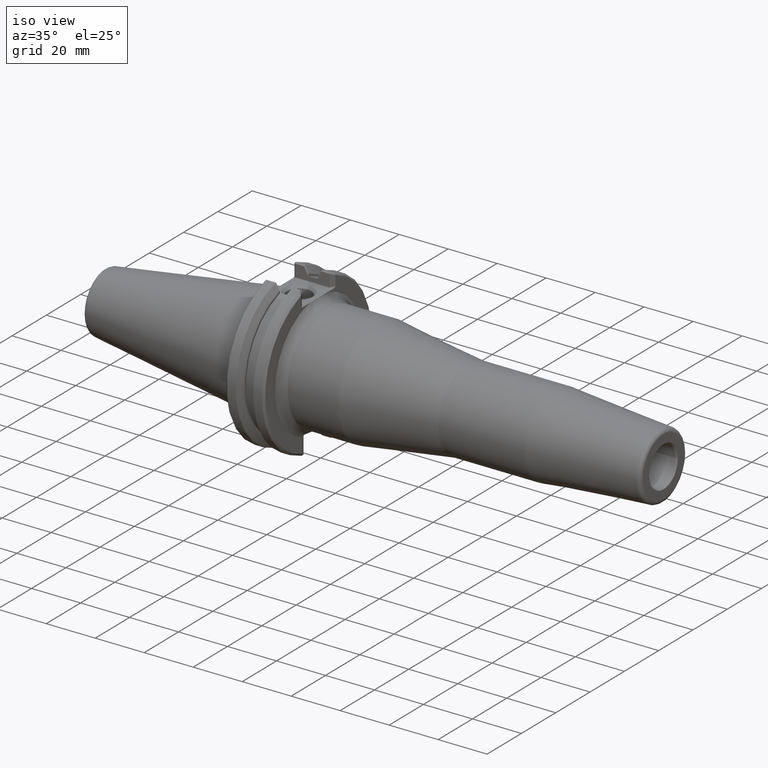
[diagram: clean part render]
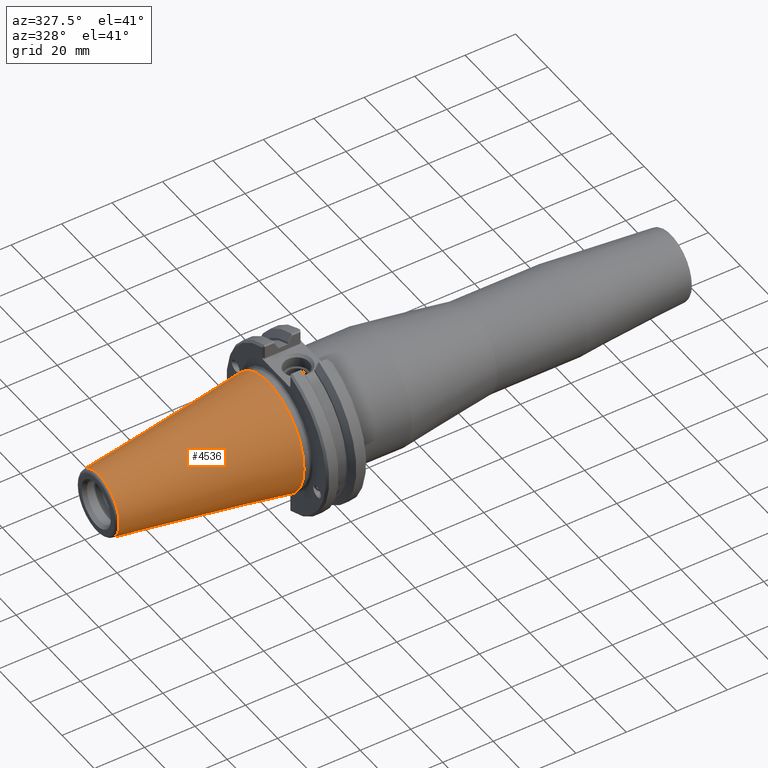
[diagram: tour spotlight — one face highlighted and labeled with its STEP entity id]
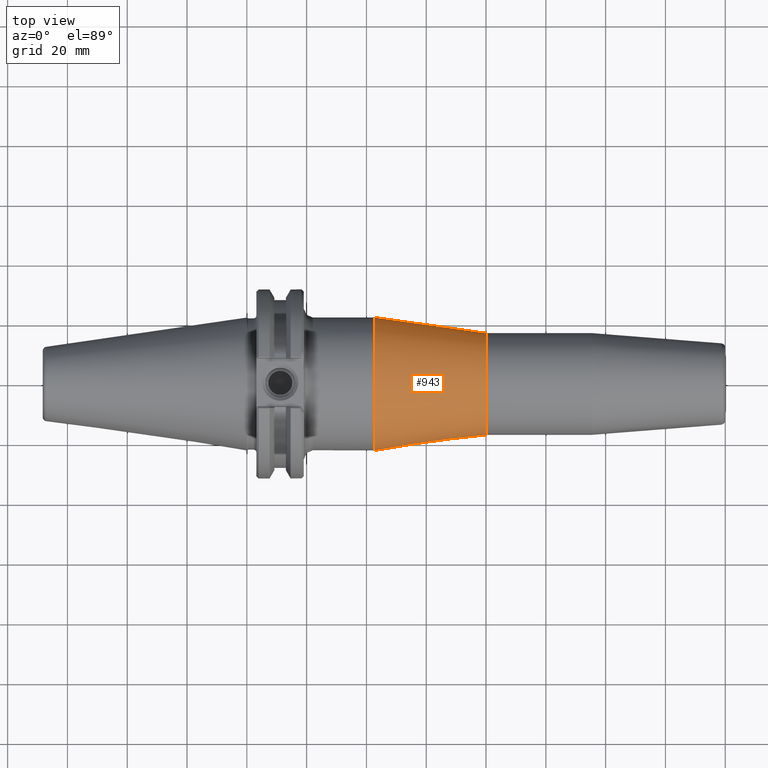
[diagram: tour spotlight — one face highlighted and labeled with its STEP entity id]
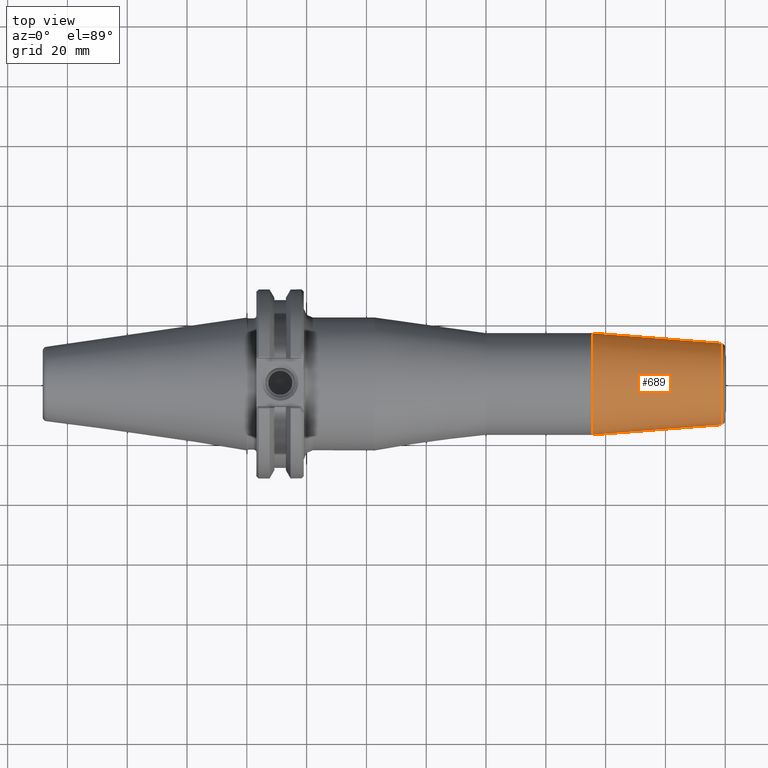
[diagram: tour spotlight — one face highlighted and labeled with its STEP entity id]
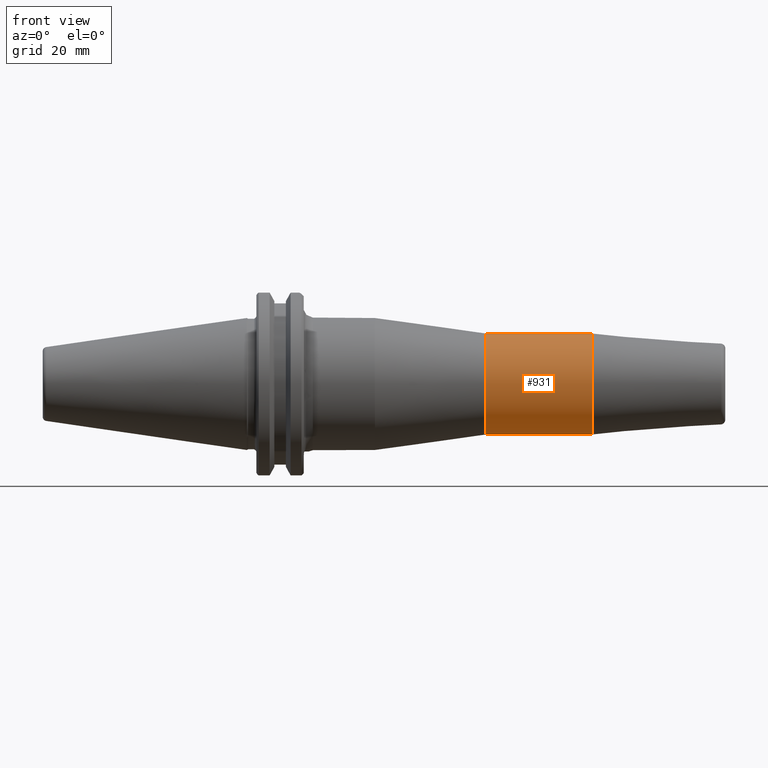
[diagram: tour spotlight — one face highlighted and labeled with its STEP entity id]
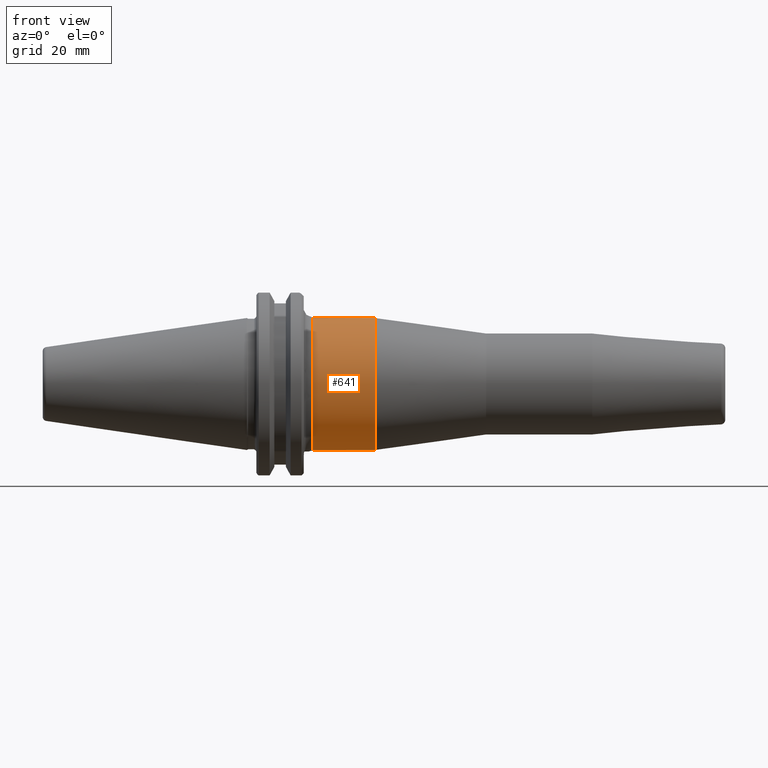
[diagram: tour spotlight — one face highlighted and labeled with its STEP entity id]
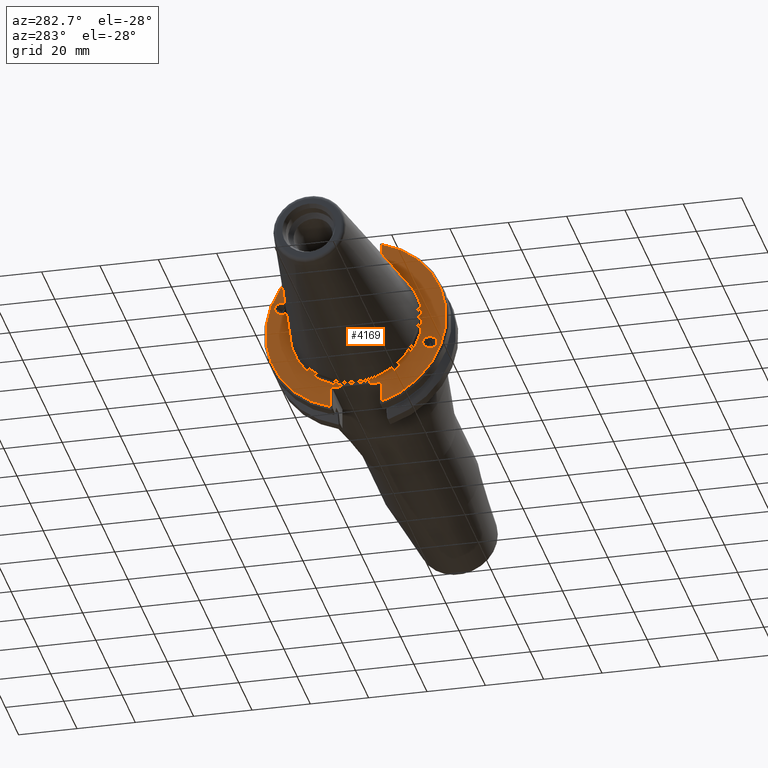
[diagram: tour spotlight — one face highlighted and labeled with its STEP entity id]
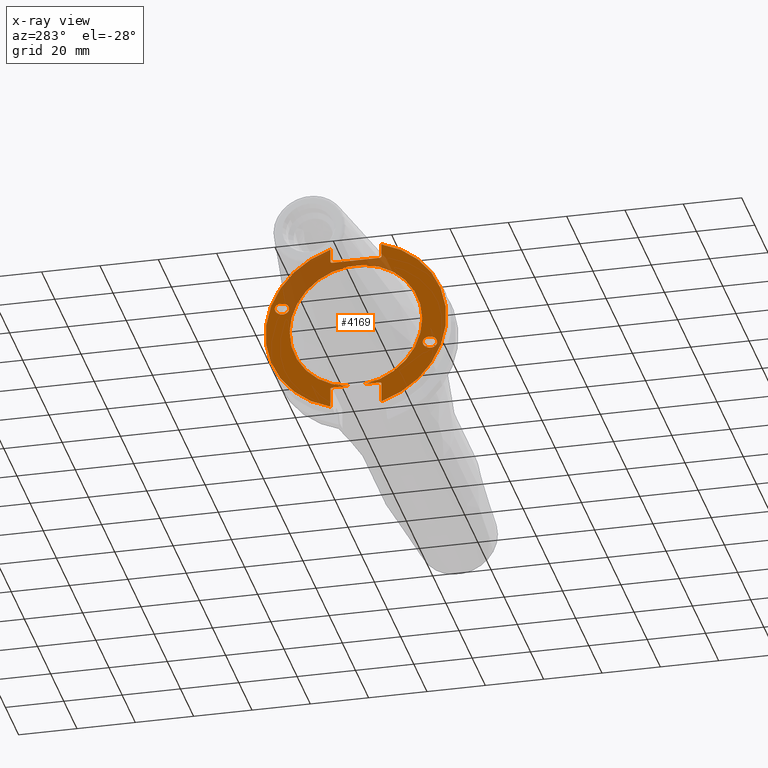
[diagram: x-ray of the same camera — body ghosted, this tour face saturated]
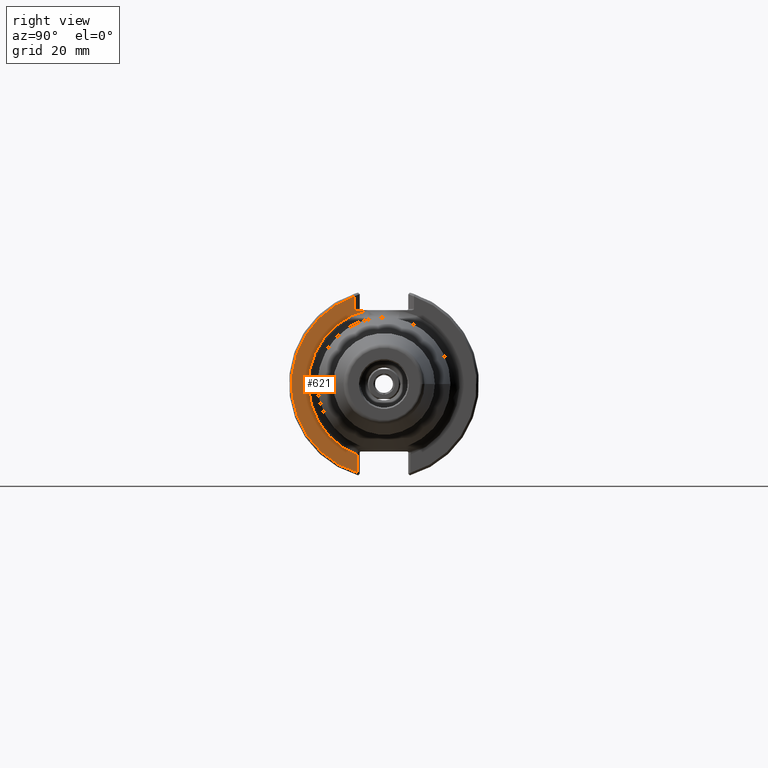
[diagram: tour spotlight — one face highlighted and labeled with its STEP entity id]
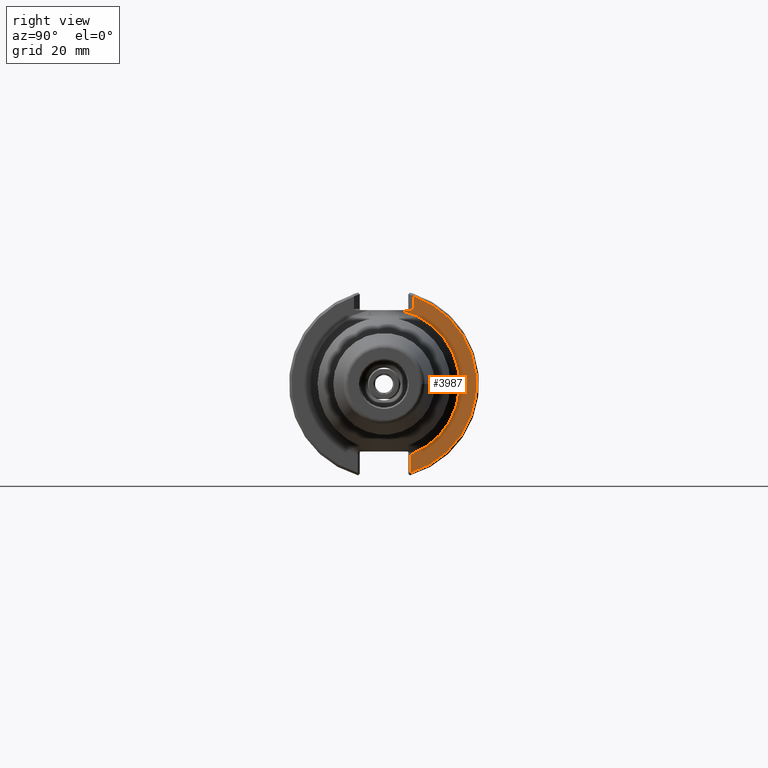
[diagram: tour spotlight — one face highlighted and labeled with its STEP entity id]
A machine part: a face-by-face anatomy tour. The part has 153 B-rep faces; the first image is the clean iso view, then the 8 largest visible faces are spotlighted one at a time (largest first), each with its STEP entity span.

Face 1 — auxiliary view, entity #4536. In plain terms, the highlighted conical surface has half-angle 8.297 deg.
Definition (entity closure, byte-faithful):
#4303=CARTESIAN_POINT('',(0.0,22.224999999999998,0.0));
#4304=VERTEX_POINT('',#4303);
#4305=CARTESIAN_POINT('',(0.0,0.0,0.0));
#4306=DIRECTION('',(1.0,1.624514E-013,0.0));
#4307=DIRECTION('',(-1.624514E-013,1.0,0.0));
#4308=AXIS2_PLACEMENT_3D('',#4305,#4306,#4307);
#4309=CIRCLE('',#4308,22.224999999999998);
#4310=EDGE_CURVE('',#4304,#4304,#4309,.T.);
#4501=CARTESIAN_POINT('',(-67.088827900437934,12.441385956103170,-3.047160E-015));
#4502=VERTEX_POINT('',#4501);
#4503=CARTESIAN_POINT('',(-67.088827900437892,2.886580E-013,-1.523580E-015));
#4504=DIRECTION('',(-1.0,0.0,0.0));
#4505=DIRECTION('',(0.0,-1.0,0.0));
#4506=AXIS2_PLACEMENT_3D('',#4503,#4504,#4505);
#4507=CIRCLE('',#4506,12.441385956102881);
#4508=EDGE_CURVE('',#4502,#4502,#4507,.T.);
#4525=CARTESIAN_POINT('',(-34.131250000000001,0.0,0.0));
#4526=DIRECTION('',(1.0,0.0,0.0));
#4527=DIRECTION('',(-1.624514E-013,1.0,0.0));
#4528=AXIS2_PLACEMENT_3D('',#4525,#4526,#4527);
#4529=CONICAL_SURFACE('',#4528,17.247614237182344,8.296999999999994);
#4530=ORIENTED_EDGE('',*,*,#4310,.F.);
#4531=EDGE_LOOP('',(#4530));
#4532=FACE_OUTER_BOUND('',#4531,.T.);
#4533=ORIENTED_EDGE('',*,*,#4508,.F.);
#4534=EDGE_LOOP('',(#4533));
#4535=FACE_BOUND('',#4534,.T.);
#4536=ADVANCED_FACE('',(#4532,#4535),#4529,.T.);

Face 2 — top view, entity #943. In plain terms, the highlighted conical surface has half-angle 8 deg.
Definition (entity closure, byte-faithful):
#627=CARTESIAN_POINT('',(42.832193200542505,22.224999999999998,0.0));
#628=VERTEX_POINT('',#627);
#629=CARTESIAN_POINT('',(42.832193200542505,0.0,0.0));
#630=DIRECTION('',(1.0,0.0,0.0));
#631=DIRECTION('',(0.0,1.0,0.0));
#632=AXIS2_PLACEMENT_3D('',#629,#630,#631);
#633=CIRCLE('',#632,22.224999999999998);
#634=EDGE_CURVE('',#628,#628,#633,.T.);
#920=CARTESIAN_POINT('',(80.009999999999977,17.000000000000007,0.0));
#921=VERTEX_POINT('',#920);
#922=CARTESIAN_POINT('',(80.009999999999977,0.0,0.0));
#923=DIRECTION('',(1.0,0.0,0.0));
#924=DIRECTION('',(0.0,1.0,0.0));
#925=AXIS2_PLACEMENT_3D('',#922,#923,#924);
#926=CIRCLE('',#925,17.000000000000007);
#927=EDGE_CURVE('',#921,#921,#926,.T.);
#932=CARTESIAN_POINT('',(61.421096600271241,0.0,0.0));
#933=DIRECTION('',(-1.0,0.0,0.0));
#934=DIRECTION('',(0.0,1.0,0.0));
#935=AXIS2_PLACEMENT_3D('',#932,#933,#934);
#936=CONICAL_SURFACE('',#935,19.612500000000001,7.999999999999992);
#937=ORIENTED_EDGE('',*,*,#927,.F.);
#938=EDGE_LOOP('',(#937));
#939=FACE_OUTER_BOUND('',#938,.T.);
#940=ORIENTED_EDGE('',*,*,#634,.T.);
#941=EDGE_LOOP('',(#940));
#942=FACE_BOUND('',#941,.T.);
#943=ADVANCED_FACE('',(#939,#942),#936,.T.);

Face 3 — top view, entity #689. In plain terms, the highlighted conical surface has half-angle 4.5 deg.
Definition (entity closure, byte-faithful):
#647=CARTESIAN_POINT('',(158.605571661889200,13.610530907322184,2.465190E-031));
#648=VERTEX_POINT('',#647);
#649=CARTESIAN_POINT('',(158.605571661889200,0.0,-1.666754E-015));
#650=DIRECTION('',(1.0,0.0,0.0));
#651=DIRECTION('',(0.0,-1.0,0.0));
#652=AXIS2_PLACEMENT_3D('',#649,#650,#651);
#653=CIRCLE('',#652,13.610530907322184);
#654=EDGE_CURVE('',#648,#648,#653,.T.);
#670=CARTESIAN_POINT('',(137.774141711694140,0.0,0.0));
#671=DIRECTION('',(-1.0,0.0,0.0));
#672=DIRECTION('',(0.0,1.0,0.0));
#673=AXIS2_PLACEMENT_3D('',#670,#671,#672);
#674=CONICAL_SURFACE('',#673,15.250000000000007,4.499999999999990);
#675=CARTESIAN_POINT('',(115.538283423388320,17.000000000000014,0.0));
#676=VERTEX_POINT('',#675);
#677=CARTESIAN_POINT('',(115.538283423388320,0.0,0.0));
#678=DIRECTION('',(1.0,0.0,0.0));
#679=DIRECTION('',(0.0,1.0,0.0));
#680=AXIS2_PLACEMENT_3D('',#677,#678,#679);
#681=CIRCLE('',#680,17.000000000000014);
#682=EDGE_CURVE('',#676,#676,#681,.T.);
#683=ORIENTED_EDGE('',*,*,#682,.T.);
#684=EDGE_LOOP('',(#683));
#685=FACE_OUTER_BOUND('',#684,.T.);
#686=ORIENTED_EDGE('',*,*,#654,.F.);
#687=EDGE_LOOP('',(#686));
#688=FACE_BOUND('',#687,.T.);
#689=ADVANCED_FACE('',(#685,#688),#674,.T.);

Face 4 — front view, entity #931. In plain terms, the highlighted cylindrical surface (bore or boss wall) has radius 17 mm, axis along (1, 0, 0).
Definition (entity closure, byte-faithful):
#675=CARTESIAN_POINT('',(115.538283423388320,17.000000000000014,0.0));
#676=VERTEX_POINT('',#675);
#677=CARTESIAN_POINT('',(115.538283423388320,0.0,0.0));
#678=DIRECTION('',(1.0,0.0,0.0));
#679=DIRECTION('',(0.0,1.0,0.0));
#680=AXIS2_PLACEMENT_3D('',#677,#678,#679);
#681=CIRCLE('',#680,17.000000000000014);
#682=EDGE_CURVE('',#676,#676,#681,.T.);
#912=CARTESIAN_POINT('',(75.231641711694152,0.0,0.0));
#913=DIRECTION('',(1.0,0.0,0.0));
#914=DIRECTION('',(0.0,1.0,0.0));
#915=AXIS2_PLACEMENT_3D('',#912,#913,#914);
#916=CYLINDRICAL_SURFACE('',#915,17.000000000000007);
#917=ORIENTED_EDGE('',*,*,#682,.F.);
#918=EDGE_LOOP('',(#917));
#919=FACE_OUTER_BOUND('',#918,.T.);
#920=CARTESIAN_POINT('',(80.009999999999977,17.000000000000007,0.0));
#921=VERTEX_POINT('',#920);
#922=CARTESIAN_POINT('',(80.009999999999977,0.0,0.0));
#923=DIRECTION('',(1.0,0.0,0.0));
#924=DIRECTION('',(0.0,1.0,0.0));
#925=AXIS2_PLACEMENT_3D('',#922,#923,#924);
#926=CIRCLE('',#925,17.000000000000007);
#927=EDGE_CURVE('',#921,#921,#926,.T.);
#928=ORIENTED_EDGE('',*,*,#927,.T.);
#929=EDGE_LOOP('',(#928));
#930=FACE_BOUND('',#929,.T.);
#931=ADVANCED_FACE('',(#919,#930),#916,.T.);

Face 5 — front view, entity #641. In plain terms, the highlighted cylindrical surface (bore or boss wall) has radius 22.225 mm, axis along (1, 0, 0).
Definition (entity closure, byte-faithful):
#561=CARTESIAN_POINT('',(22.098000000000006,22.225000000000001,-5.443375E-015));
#562=VERTEX_POINT('',#561);
#563=CARTESIAN_POINT('',(22.098000000000006,0.0,0.0));
#564=DIRECTION('',(-1.0,0.0,0.0));
#565=DIRECTION('',(0.0,-1.0,0.0));
#566=AXIS2_PLACEMENT_3D('',#563,#564,#565);
#567=CIRCLE('',#566,22.225000000000001);
#568=EDGE_CURVE('',#562,#562,#567,.T.);
#622=CARTESIAN_POINT('',(27.050999999999998,0.0,0.0));
#623=DIRECTION('',(1.0,0.0,0.0));
#624=DIRECTION('',(-1.624514E-013,1.0,0.0));
#625=AXIS2_PLACEMENT_3D('',#622,#623,#624);
#626=CYLINDRICAL_SURFACE('',#625,22.225000000000001);
#627=CARTESIAN_POINT('',(42.832193200542505,22.224999999999998,0.0));
#628=VERTEX_POINT('',#627);
#629=CARTESIAN_POINT('',(42.832193200542505,0.0,0.0));
#630=DIRECTION('',(1.0,0.0,0.0));
#631=DIRECTION('',(0.0,1.0,0.0));
#632=AXIS2_PLACEMENT_3D('',#629,#630,#631);
#633=CIRCLE('',#632,22.224999999999998);
#634=EDGE_CURVE('',#628,#628,#633,.T.);
#635=ORIENTED_EDGE('',*,*,#634,.F.);
#636=EDGE_LOOP('',(#635));
#637=FACE_OUTER_BOUND('',#636,.T.);
#638=ORIENTED_EDGE('',*,*,#568,.F.);
#639=EDGE_LOOP('',(#638));
#640=FACE_BOUND('',#639,.T.);
#641=ADVANCED_FACE('',(#637,#640),#626,.T.);

Face 6 — auxiliary view, entity #4169. An x-ray twin of the same camera follows (body ghosted, this face saturated) — the face is partly hidden behind the body. In plain terms, the highlighted planar face has unit normal (-1, 0, 0).
Definition (entity closure, byte-faithful):
#118=CARTESIAN_POINT('',(3.174999999999999,-23.020225310704397,-8.378676799197839));
#119=VERTEX_POINT('',#118);
#120=CARTESIAN_POINT('',(3.174999999999999,-25.371888699743685,-9.234612273821719));
#121=DIRECTION('',(1.000000000000000,0.0,0.0));
#122=DIRECTION('',(0.0,-0.939692620785909,-0.342020143325669));
#123=AXIS2_PLACEMENT_3D('',#120,#121,#122);
#124=ELLIPSE('',#123,2.502587906960984,2.050000000000002);
#125=EDGE_CURVE('',#119,#119,#124,.T.);
#342=CARTESIAN_POINT('',(3.174999999999999,23.020225310704411,8.378676799197804));
#343=VERTEX_POINT('',#342);
#344=CARTESIAN_POINT('',(3.174999999999999,25.371888699743685,9.234612273821718));
#345=DIRECTION('',(1.0,0.0,0.0));
#346=DIRECTION('',(0.0,0.939692620785904,0.342020143325682));
#347=AXIS2_PLACEMENT_3D('',#344,#345,#346);
#348=ELLIPSE('',#347,2.502587906960984,2.050000000000002);
#349=EDGE_CURVE('',#343,#343,#348,.T.);
#3237=CARTESIAN_POINT('',(3.174999999999999,8.763000000007136,25.196799999999996));
#3238=VERTEX_POINT('',#3237);
#3245=CARTESIAN_POINT('',(3.174999999999999,8.044579510321601,24.688799999999993));
#3246=VERTEX_POINT('',#3245);
#3247=CARTESIAN_POINT('',(3.174999999999999,8.044579510321603,25.196799999999996));
#3248=DIRECTION('',(-1.0,0.0,0.0));
#3249=DIRECTION('',(0.0,1.0,0.0));
#3250=AXIS2_PLACEMENT_3D('',#3247,#3248,#3249);
#3251=ELLIPSE('',#3250,0.718420489685532,0.508000000000000);
#3252=EDGE_CURVE('',#3238,#3246,#3251,.T.);
#3337=CARTESIAN_POINT('',(3.174999999999999,8.763000000007136,29.723155535707761));
#3338=VERTEX_POINT('',#3337);
#3345=CARTESIAN_POINT('',(3.174999999999999,8.763000000007136,29.723155535707761));
#3346=DIRECTION('',(0.0,0.0,-1.0));
#3347=VECTOR('',#3346,4.526355535707765);
#3348=LINE('',#3345,#3347);
#3349=EDGE_CURVE('',#3338,#3238,#3348,.T.);
#3431=CARTESIAN_POINT('',(3.174999999999999,-8.044579510307333,24.688799999999993));
#3432=VERTEX_POINT('',#3431);
#3439=CARTESIAN_POINT('',(3.174999999999999,-8.762999999992864,25.196799999999996));
#3440=VERTEX_POINT('',#3439);
#3441=CARTESIAN_POINT('',(3.174999999999999,-8.044579510307333,25.196799999999996));
#3442=DIRECTION('',(-1.0,0.0,0.0));
#3443=DIRECTION('',(0.0,-1.0,0.0));
#3444=AXIS2_PLACEMENT_3D('',#3441,#3442,#3443);
#3445=ELLIPSE('',#3444,0.718420489685531,0.508000000000000);
#3446=EDGE_CURVE('',#3432,#3440,#3445,.T.);
#3476=CARTESIAN_POINT('',(3.174999999999999,-8.762999999992864,29.723155535711964));
#3477=VERTEX_POINT('',#3476);
#3478=CARTESIAN_POINT('',(3.174999999999999,-8.762999999992864,25.196799999999996));
#3479=DIRECTION('',(0.0,0.0,1.0));
#3480=VECTOR('',#3479,4.526355535711968);
#3481=LINE('',#3478,#3480);
#3482=EDGE_CURVE('',#3440,#3477,#3481,.T.);
#3500=CARTESIAN_POINT('',(3.174999999999999,-8.762999999994042,-23.063200000000009));
#3501=VERTEX_POINT('',#3500);
#3502=CARTESIAN_POINT('',(3.174999999999999,-8.044579510308394,-22.555200000000006));
#3503=VERTEX_POINT('',#3502);
#3504=CARTESIAN_POINT('',(3.174999999999999,-8.044579510308394,-23.063200000000009));
#3505=DIRECTION('',(-1.0,0.0,0.0));
#3506=DIRECTION('',(0.0,-1.0,0.0));
#3507=AXIS2_PLACEMENT_3D('',#3504,#3505,#3506);
#3508=ELLIPSE('',#3507,0.718420489685649,0.508000000000000);
#3509=EDGE_CURVE('',#3501,#3503,#3508,.T.);
#3597=CARTESIAN_POINT('',(3.174999999999999,-8.762999999994042,-29.723155535711619));
#3598=VERTEX_POINT('',#3597);
#3605=CARTESIAN_POINT('',(3.174999999999999,-8.762999999994042,-29.723155535711619));
#3606=DIRECTION('',(0.0,0.0,1.0));
#3607=VECTOR('',#3606,6.659955535711610);
#3608=LINE('',#3605,#3607);
#3609=EDGE_CURVE('',#3598,#3501,#3608,.T.);
#3694=CARTESIAN_POINT('',(3.174999999999999,8.044579510320546,-22.555200000000006));
#3695=VERTEX_POINT('',#3694);
#3702=CARTESIAN_POINT('',(3.174999999999999,8.763000000005960,-23.063200000000009));
#3703=VERTEX_POINT('',#3702);
#3704=CARTESIAN_POINT('',(3.174999999999999,8.044579510320544,-23.063200000000009));
#3705=DIRECTION('',(-1.0,0.0,0.0));
#3706=DIRECTION('',(0.0,1.0,0.0));
#3707=AXIS2_PLACEMENT_3D('',#3704,#3705,#3706);
#3708=ELLIPSE('',#3707,0.718420489685416,0.508000000000000);
#3709=EDGE_CURVE('',#3695,#3703,#3708,.T.);
#3751=CARTESIAN_POINT('',(3.174999999999999,8.763000000005960,-29.723155535708106));
#3752=VERTEX_POINT('',#3751);
#3753=CARTESIAN_POINT('',(3.174999999999999,8.763000000005960,-23.063200000000009));
#3754=DIRECTION('',(0.0,0.0,-1.0));
#3755=VECTOR('',#3754,6.659955535708093);
#3756=LINE('',#3753,#3755);
#3757=EDGE_CURVE('',#3703,#3752,#3756,.T.);
#3845=CARTESIAN_POINT('',(3.174999999999999,8.044579510321601,24.688799999999993));
#3846=DIRECTION('',(0.0,-1.0,0.0));
#3847=VECTOR('',#3846,16.089159020628934);
#3848=LINE('',#3845,#3847);
#3849=EDGE_CURVE('',#3246,#3432,#3848,.T.);
#4067=CARTESIAN_POINT('',(3.174999999999999,-2.837647257852875,-22.555200000000006));
#4068=VERTEX_POINT('',#4067);
#4069=CARTESIAN_POINT('',(3.174999999999999,2.837647257852875,-22.555200000000006));
#4070=VERTEX_POINT('',#4069);
#4099=CARTESIAN_POINT('',(3.174999999999999,0.0,0.0));
#4100=DIRECTION('',(-1.0,0.0,0.0));
#4101=DIRECTION('',(0.0,-1.0,0.0));
#4102=AXIS2_PLACEMENT_3D('',#4099,#4100,#4101);
#4103=CIRCLE('',#4102,22.733000000000004);
#4104=EDGE_CURVE('',#4068,#4070,#4103,.T.);
#4120=CARTESIAN_POINT('',(3.174999999999999,26.987499999999997,0.0));
#4121=DIRECTION('',(-1.0,0.0,0.0));
#4122=DIRECTION('',(0.0,0.0,1.0));
#4123=AXIS2_PLACEMENT_3D('',#4120,#4121,#4122);
#4124=PLANE('',#4123);
#4125=ORIENTED_EDGE('',*,*,#4104,.F.);
#4126=CARTESIAN_POINT('',(3.174999999999999,-8.044579510308394,-22.555200000000006));
#4127=DIRECTION('',(0.0,1.0,0.0));
#4128=VECTOR('',#4127,5.206932252455520);
#4129=LINE('',#4126,#4128);
#4130=EDGE_CURVE('',#3503,#4068,#4129,.T.);
#4131=ORIENTED_EDGE('',*,*,#4130,.F.);
#4132=ORIENTED_EDGE('',*,*,#3509,.F.);
#4133=ORIENTED_EDGE('',*,*,#3609,.F.);
#4134=CARTESIAN_POINT('',(3.174999999999999,0.0,0.0));
#4135=DIRECTION('',(1.0,0.0,0.0));
#4136=DIRECTION('',(0.0,-1.0,0.0));
#4137=AXIS2_PLACEMENT_3D('',#4134,#4135,#4136);
#4138=CIRCLE('',#4137,30.988000000000000);
#4139=EDGE_CURVE('',#3477,#3598,#4138,.T.);
#4140=ORIENTED_EDGE('',*,*,#4139,.F.);
#4141=ORIENTED_EDGE('',*,*,#3482,.F.);
#4142=ORIENTED_EDGE('',*,*,#3446,.F.);
#4143=ORIENTED_EDGE('',*,*,#3849,.F.);
#4144=ORIENTED_EDGE('',*,*,#3252,.F.);
#4145=ORIENTED_EDGE('',*,*,#3349,.F.);
#4146=CARTESIAN_POINT('',(3.174999999999999,0.0,0.0));
#4147=DIRECTION('',(1.0,0.0,0.0));
#4148=DIRECTION('',(0.0,1.0,0.0));
#4149=AXIS2_PLACEMENT_3D('',#4146,#4147,#4148);
#4150=CIRCLE('',#4149,30.988000000000000);
#4151=EDGE_CURVE('',#3752,#3338,#4150,.T.);
#4152=ORIENTED_EDGE('',*,*,#4151,.F.);
#4153=ORIENTED_EDGE('',*,*,#3757,.F.);
#4154=ORIENTED_EDGE('',*,*,#3709,.F.);
#4155=CARTESIAN_POINT('',(3.174999999999999,2.837647257852876,-22.555200000000006));
#4156=DIRECTION('',(0.0,1.0,0.0));
#4157=VECTOR('',#4156,5.206932252467670);
#4158=LINE('',#4155,#4157);
#4159=EDGE_CURVE('',#4070,#3695,#4158,.T.);
#4160=ORIENTED_EDGE('',*,*,#4159,.F.);
#4161=EDGE_LOOP('',(#4125,#4131,#4132,#4133,#4140,#4141,#4142,#4143,#4144,#4145,#4152,#4153,#4154,#4160));
#4162=FACE_OUTER_BOUND('',#4161,.T.);
#4163=ORIENTED_EDGE('',*,*,#125,.T.);
#4164=EDGE_LOOP('',(#4163));
#4165=FACE_BOUND('',#4164,.T.);
#4166=ORIENTED_EDGE('',*,*,#349,.T.);
#4167=EDGE_LOOP('',(#4166));
#4168=FACE_BOUND('',#4167,.T.);
#4169=ADVANCED_FACE('',(#4162,#4165,#4168),#4124,.T.);

Face 7 — right view, entity #621. In plain terms, the highlighted planar face has unit normal (1, 0, 0).
Definition (entity closure, byte-faithful):
#488=CARTESIAN_POINT('',(19.050000000000004,-5.402562684504498,24.688799999999993));
#489=VERTEX_POINT('',#488);
#524=CARTESIAN_POINT('',(19.050000000000004,-8.762999999991365,-23.705154713693631));
#525=VERTEX_POINT('',#524);
#526=CARTESIAN_POINT('',(19.050000000000004,0.0,0.0));
#527=DIRECTION('',(1.0,0.0,0.0));
#528=DIRECTION('',(0.0,-1.0,0.0));
#529=AXIS2_PLACEMENT_3D('',#526,#527,#528);
#530=CIRCLE('',#529,25.273000000000003);
#531=EDGE_CURVE('',#489,#525,#530,.T.);
#573=CARTESIAN_POINT('',(19.050000000000004,26.987500000000001,0.0));
#574=DIRECTION('',(1.0,0.0,0.0));
#575=DIRECTION('',(0.0,0.0,-1.0));
#576=AXIS2_PLACEMENT_3D('',#573,#574,#575);
#577=PLANE('',#576);
#578=ORIENTED_EDGE('',*,*,#531,.F.);
#579=CARTESIAN_POINT('',(19.050000000000004,-9.016999999992867,24.688799999999993));
#580=VERTEX_POINT('',#579);
#581=CARTESIAN_POINT('',(19.050000000000004,-5.402562684504499,24.688799999999993));
#582=DIRECTION('',(0.0,-1.0,0.0));
#583=VECTOR('',#582,3.614437315488367);
#584=LINE('',#581,#583);
#585=EDGE_CURVE('',#489,#580,#584,.T.);
#586=ORIENTED_EDGE('',*,*,#585,.T.);
#587=CARTESIAN_POINT('',(19.050000000000004,-10.032999999992867,25.196799999999996));
#588=VERTEX_POINT('',#587);
#589=CARTESIAN_POINT('',(19.050000000000004,-9.016999999992866,25.196799999999996));
#590=DIRECTION('',(1.0,0.0,0.0));
#591=DIRECTION('',(0.0,-1.0,0.0));
#592=AXIS2_PLACEMENT_3D('',#589,#590,#591);
#593=ELLIPSE('',#592,1.016000000000001,0.508000000000000);
#594=EDGE_CURVE('',#588,#580,#593,.T.);
#595=ORIENTED_EDGE('',*,*,#594,.F.);
#596=CARTESIAN_POINT('',(19.050000000000004,-10.032999999992867,29.318851529351264));
#597=VERTEX_POINT('',#596);
#598=CARTESIAN_POINT('',(19.050000000000004,-10.032999999992867,29.318851529351264));
#599=DIRECTION('',(0.0,0.0,-1.0));
#600=VECTOR('',#599,4.122051529351268);
#601=LINE('',#598,#600);
#602=EDGE_CURVE('',#597,#588,#601,.T.);
#603=ORIENTED_EDGE('',*,*,#602,.F.);
#604=CARTESIAN_POINT('',(19.050000000000004,-8.762999999991365,-29.723155535712408));
#605=VERTEX_POINT('',#604);
#606=CARTESIAN_POINT('',(19.050000000000004,0.0,0.0));
#607=DIRECTION('',(-1.0,0.0,0.0));
#608=DIRECTION('',(0.0,-1.0,0.0));
#609=AXIS2_PLACEMENT_3D('',#606,#607,#608);
#610=CIRCLE('',#609,30.988000000000000);
#611=EDGE_CURVE('',#605,#597,#610,.T.);
#612=ORIENTED_EDGE('',*,*,#611,.F.);
#613=CARTESIAN_POINT('',(19.050000000000004,-8.762999999991365,-23.705154713693631));
#614=DIRECTION('',(0.0,0.0,-1.0));
#615=VECTOR('',#614,6.018000822018777);
#616=LINE('',#613,#615);
#617=EDGE_CURVE('',#525,#605,#616,.T.);
#618=ORIENTED_EDGE('',*,*,#617,.F.);
#619=EDGE_LOOP('',(#578,#586,#595,#603,#612,#618));
#620=FACE_OUTER_BOUND('',#619,.T.);
#621=ADVANCED_FACE('',(#620),#577,.T.);

Face 8 — right view, entity #3987. In plain terms, the highlighted planar face has unit normal (1, 0, 0).
Definition (entity closure, byte-faithful):
#467=CARTESIAN_POINT('',(19.050000000000004,8.763000000008642,-23.705154713687246));
#468=VERTEX_POINT('',#467);
#479=CARTESIAN_POINT('',(19.050000000000004,5.402562684504498,24.688799999999993));
#480=VERTEX_POINT('',#479);
#481=CARTESIAN_POINT('',(19.050000000000004,0.0,0.0));
#482=DIRECTION('',(1.0,0.0,0.0));
#483=DIRECTION('',(0.0,-1.0,0.0));
#484=AXIS2_PLACEMENT_3D('',#481,#482,#483);
#485=CIRCLE('',#484,25.273000000000003);
#486=EDGE_CURVE('',#468,#480,#485,.T.);
#1088=CARTESIAN_POINT('',(19.050000000000004,10.033000000007139,29.318851529346382));
#1089=VERTEX_POINT('',#1088);
#1162=CARTESIAN_POINT('',(19.050000000000004,8.763000000008642,-29.723155535707313));
#1163=VERTEX_POINT('',#1162);
#1164=CARTESIAN_POINT('',(19.050000000000004,0.0,0.0));
#1165=DIRECTION('',(-1.0,0.0,0.0));
#1166=DIRECTION('',(0.0,1.0,0.0));
#1167=AXIS2_PLACEMENT_3D('',#1164,#1165,#1166);
#1168=CIRCLE('',#1167,30.988000000000000);
#1169=EDGE_CURVE('',#1089,#1163,#1168,.T.);
#3302=CARTESIAN_POINT('',(19.050000000000004,9.017000000007140,24.688799999999993));
#3303=VERTEX_POINT('',#3302);
#3310=CARTESIAN_POINT('',(19.050000000000004,10.033000000007139,25.196799999999996));
#3311=VERTEX_POINT('',#3310);
#3312=CARTESIAN_POINT('',(19.050000000000004,9.017000000007139,25.196799999999996));
#3313=DIRECTION('',(1.0,0.0,0.0));
#3314=DIRECTION('',(0.0,1.0,0.0));
#3315=AXIS2_PLACEMENT_3D('',#3312,#3313,#3314);
#3316=ELLIPSE('',#3315,1.016000000000000,0.508000000000000);
#3317=EDGE_CURVE('',#3303,#3311,#3316,.T.);
#3362=CARTESIAN_POINT('',(19.050000000000004,10.033000000007139,25.196799999999996));
#3363=DIRECTION('',(0.0,0.0,1.0));
#3364=VECTOR('',#3363,4.122051529346386);
#3365=LINE('',#3362,#3364);
#3366=EDGE_CURVE('',#3311,#1089,#3365,.T.);
#3735=CARTESIAN_POINT('',(19.050000000000004,8.763000000008642,-29.723155535707313));
#3736=DIRECTION('',(0.0,0.0,1.0));
#3737=VECTOR('',#3736,6.018000822020067);
#3738=LINE('',#3735,#3737);
#3739=EDGE_CURVE('',#1163,#468,#3738,.T.);
#3856=CARTESIAN_POINT('',(19.050000000000004,9.017000000007140,24.688799999999993));
#3857=DIRECTION('',(0.0,-1.0,0.0));
#3858=VECTOR('',#3857,3.614437315502642);
#3859=LINE('',#3856,#3858);
#3860=EDGE_CURVE('',#3303,#480,#3859,.T.);
#3974=CARTESIAN_POINT('',(19.050000000000004,26.987500000000001,0.0));
#3975=DIRECTION('',(1.0,0.0,0.0));
#3976=DIRECTION('',(0.0,0.0,-1.0));
#3977=AXIS2_PLACEMENT_3D('',#3974,#3975,#3976);
#3978=PLANE('',#3977);
#3979=ORIENTED_EDGE('',*,*,#486,.F.);
#3980=ORIENTED_EDGE('',*,*,#3739,.F.);
#3981=ORIENTED_EDGE('',*,*,#1169,.F.);
#3982=ORIENTED_EDGE('',*,*,#3366,.F.);
#3983=ORIENTED_EDGE('',*,*,#3317,.F.);
#3984=ORIENTED_EDGE('',*,*,#3860,.T.);
#3985=EDGE_LOOP('',(#3979,#3980,#3981,#3982,#3983,#3984));
#3986=FACE_OUTER_BOUND('',#3985,.T.);
#3987=ADVANCED_FACE('',(#3986),#3978,.T.);